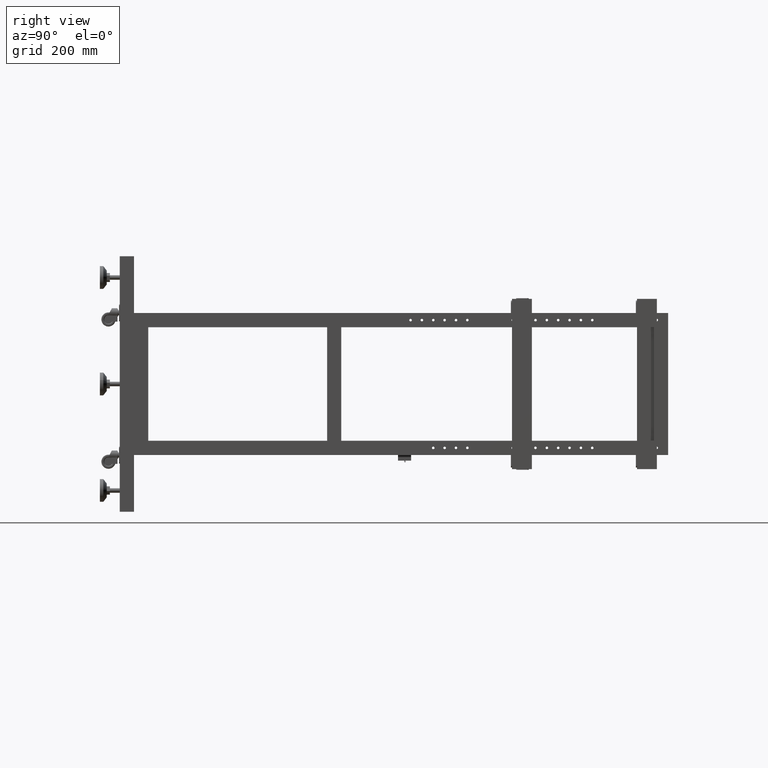
[diagram: clean part render]
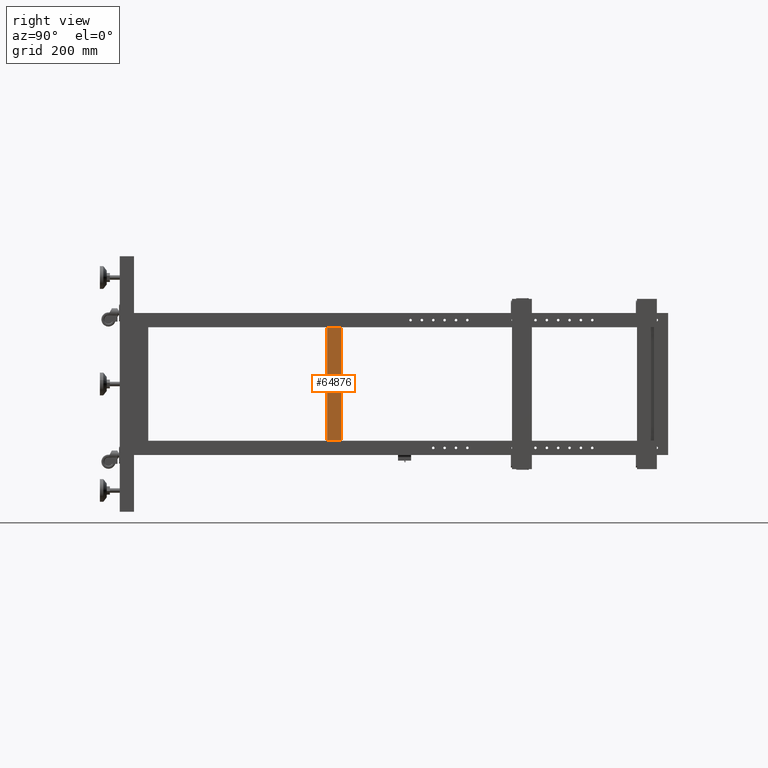
[diagram: same view with one face highlighted and labeled with its STEP entity id]
A machine part, right view. The second image highlights one B-rep face of the part: STEP entity #64876.
In plain terms, the highlighted planar face has unit normal (-1, 0, 0).
Its self-contained STEP definition (entity closure, byte-faithful):
#1573 = LINE ( 'NONE', #26335, #65600 ) ;
#2621 = CARTESIAN_POINT ( 'NONE',  ( 1.827512562815103436, -114.5589195979878099, 200.0000000000000000 ) ) ;
#6183 = VECTOR ( 'NONE', #22519, 1000.000000000000000 ) ;
#7481 = DIRECTION ( 'NONE',  ( -5.237908550834960175E-17, -1.000000000000000000, 0.000000000000000000 ) ) ;
#8196 = VERTEX_POINT ( 'NONE', #2621 ) ;
#9550 = ORIENTED_EDGE ( 'NONE', *, *, #32355, .T. ) ;
#11833 = EDGE_LOOP ( 'NONE', ( #19080, #17375, #16695, #9550 ) ) ;
#12555 = CARTESIAN_POINT ( 'NONE',  ( 1.827512562815103436, -164.5589195979877957, 200.0000000000000000 ) ) ;
#16695 = ORIENTED_EDGE ( 'NONE', *, *, #65535, .T. ) ;
#17375 = ORIENTED_EDGE ( 'NONE', *, *, #32538, .F. ) ;
#17518 = DIRECTION ( 'NONE',  ( 5.237908550834960175E-17, 1.000000000000000000, 0.000000000000000000 ) ) ;
#19080 = ORIENTED_EDGE ( 'NONE', *, *, #33901, .F. ) ;
#22519 = DIRECTION ( 'NONE',  ( -5.237908550834960175E-17, -1.000000000000000000, 0.000000000000000000 ) ) ;
#23641 = FACE_OUTER_BOUND ( 'NONE', #11833, .T. ) ;
#24029 = DIRECTION ( 'NONE',  ( -1.000000000000000000, 5.237908550834960175E-17, 0.000000000000000000 ) ) ;
#25528 = AXIS2_PLACEMENT_3D ( 'NONE', #42763, #24029, #17518 ) ;
#26278 = CARTESIAN_POINT ( 'NONE',  ( 1.827512562815103436, -164.5589195979877957, 200.0000000000000000 ) ) ;
#26335 = CARTESIAN_POINT ( 'NONE',  ( 1.827512562815103436, -114.5589195979878099, 200.0000000000000000 ) ) ;
#31319 = CARTESIAN_POINT ( 'NONE',  ( 1.827512562815103436, -164.5589195979877957, -200.0000000000000000 ) ) ;
#32355 = EDGE_CURVE ( 'NONE', #54629, #59198, #68656, .T. ) ;
#32538 = EDGE_CURVE ( 'NONE', #8196, #45045, #1573, .T. ) ;
#33901 = EDGE_CURVE ( 'NONE', #45045, #59198, #44856, .T. ) ;
#42763 = CARTESIAN_POINT ( 'NONE',  ( 1.827512562815103436, -164.5589195979877957, 200.0000000000000000 ) ) ;
#44856 = LINE ( 'NONE', #70830, #52879 ) ;
#45045 = VERTEX_POINT ( 'NONE', #63535 ) ;
#46114 = LINE ( 'NONE', #53409, #6183 ) ;
#47598 = PLANE ( 'NONE',  #25528 ) ;
#51124 = DIRECTION ( 'NONE',  ( -0.000000000000000000, 0.000000000000000000, -1.000000000000000000 ) ) ;
#52879 = VECTOR ( 'NONE', #7481, 1000.000000000000000 ) ;
#53409 = CARTESIAN_POINT ( 'NONE',  ( 1.827512562815103436, -164.5589195979877957, 200.0000000000000000 ) ) ;
#54629 = VERTEX_POINT ( 'NONE', #26278 ) ;
#59198 = VERTEX_POINT ( 'NONE', #31319 ) ;
#60440 = VECTOR ( 'NONE', #80436, 1000.000000000000000 ) ;
#63535 = CARTESIAN_POINT ( 'NONE',  ( 1.827512562815103436, -114.5589195979878099, -200.0000000000000000 ) ) ;
#64876 = ADVANCED_FACE ( 'NONE', ( #23641 ), #47598, .F. ) ;
#65535 = EDGE_CURVE ( 'NONE', #8196, #54629, #46114, .T. ) ;
#65600 = VECTOR ( 'NONE', #51124, 1000.000000000000000 ) ;
#68656 = LINE ( 'NONE', #12555, #60440 ) ;
#70830 = CARTESIAN_POINT ( 'NONE',  ( 1.827512562815103436, -164.5589195979877957, -200.0000000000000000 ) ) ;
#80436 = DIRECTION ( 'NONE',  ( -0.000000000000000000, 0.000000000000000000, -1.000000000000000000 ) ) ;